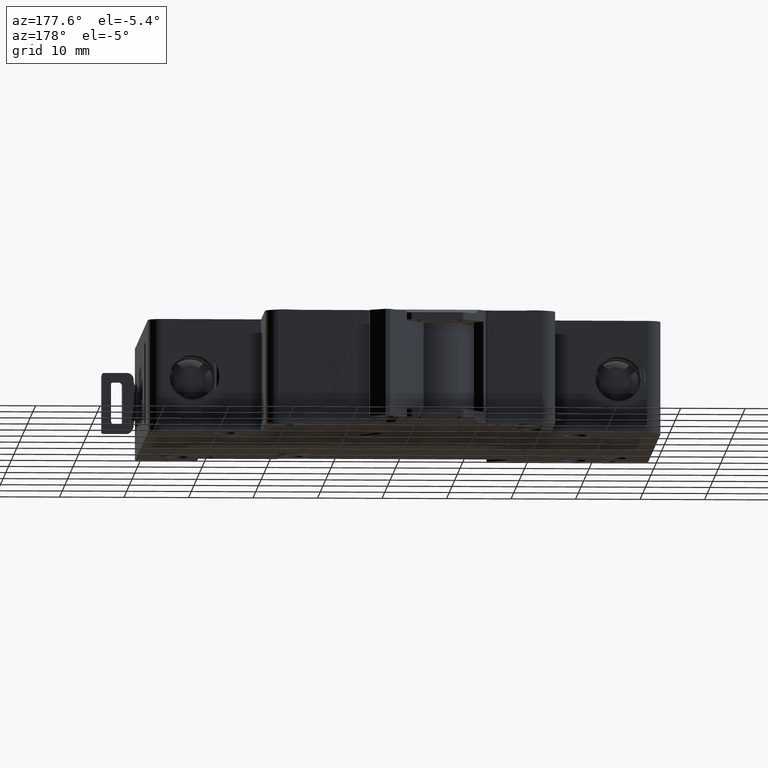
[diagram: clean part render]
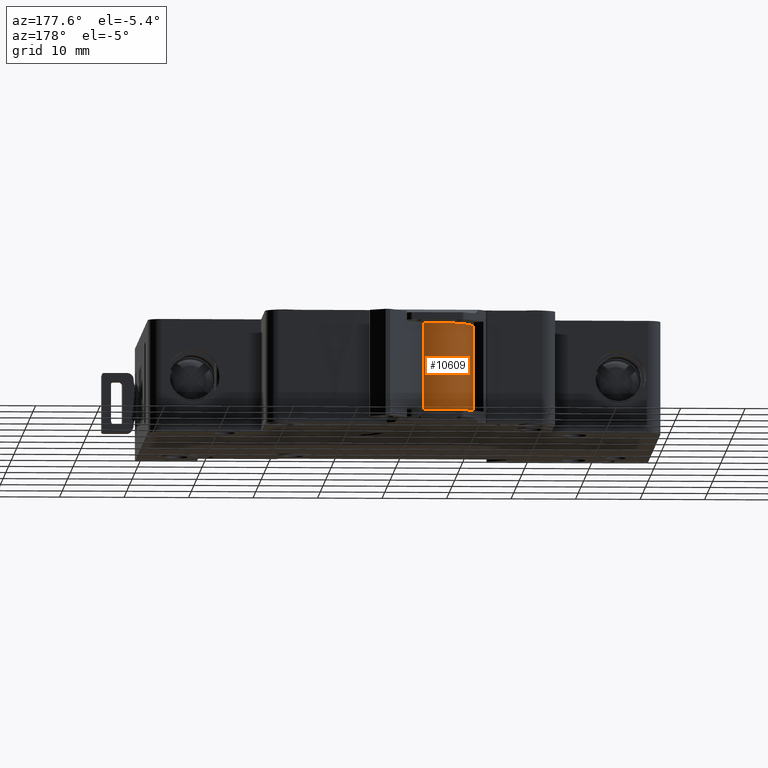
[diagram: same view with one face highlighted and labeled with its STEP entity id]
A machine part, auxiliary view. The second image highlights one B-rep face of the part: STEP entity #10609.
In plain terms, the highlighted cylindrical surface (partial cylindrical patch) has radius 6 mm, axis along (-0, -0, -1).
Its self-contained STEP definition (entity closure, byte-faithful):
#671 = CARTESIAN_POINT ( 'NONE',  ( 30.00000000000011700, 60.50000000000000000, 6.750000000000000000 ) ) ;
#733 = ORIENTED_EDGE ( 'NONE', *, *, #3440, .F. ) ;
#1026 = VECTOR ( 'NONE', #13751, 1000.000000000000000 ) ;
#1148 = DIRECTION ( 'NONE',  ( -0.0000000000000000000, -0.0000000000000000000, -1.000000000000000000 ) ) ;
#2406 = CARTESIAN_POINT ( 'NONE',  ( 36.00000000000000700, 60.50000000000000000, 6.750000000000000000 ) ) ;
#3135 = CARTESIAN_POINT ( 'NONE',  ( 30.00000000000011700, 60.50000000000000000, 6.750000000000000000 ) ) ;
#3440 = EDGE_CURVE ( 'NONE', #3765, #14033, #4576, .T. ) ;
#3566 = VERTEX_POINT ( 'NONE', #15350 ) ;
#3751 = DIRECTION ( 'NONE',  ( 1.000000000000000000, 0.0000000000000000000, 0.0000000000000000000 ) ) ;
#3765 = VERTEX_POINT ( 'NONE', #3135 ) ;
#4520 = CIRCLE ( 'NONE', #8408, 5.999999999999887200 ) ;
#4576 = LINE ( 'NONE', #671, #1026 ) ;
#5049 = ORIENTED_EDGE ( 'NONE', *, *, #14194, .F. ) ;
#6286 = ORIENTED_EDGE ( 'NONE', *, *, #13659, .T. ) ;
#6650 = CIRCLE ( 'NONE', #9076, 5.999999999999887200 ) ;
#7383 = CARTESIAN_POINT ( 'NONE',  ( 36.00000000000000700, 60.50000000000000000, -6.750000000000000000 ) ) ;
#8408 = AXIS2_PLACEMENT_3D ( 'NONE', #7383, #16279, #8676 ) ;
#8676 = DIRECTION ( 'NONE',  ( 1.000000000000000000, 0.0000000000000000000, 0.0000000000000000000 ) ) ;
#9076 = AXIS2_PLACEMENT_3D ( 'NONE', #2406, #11592, #3751 ) ;
#9156 = DIRECTION ( 'NONE',  ( -0.0000000000000000000, -0.0000000000000000000, -1.000000000000000000 ) ) ;
#10198 = CARTESIAN_POINT ( 'NONE',  ( 37.99362241761382800, 66.15910502252675900, -6.750000000000000000 ) ) ;
#10609 = ADVANCED_FACE ( 'NONE', ( #11264 ), #13828, .T. ) ;
#11264 = FACE_OUTER_BOUND ( 'NONE', #16271, .T. ) ;
#11592 = DIRECTION ( 'NONE',  ( -0.0000000000000000000, 0.0000000000000000000, 1.000000000000000000 ) ) ;
#11662 = VECTOR ( 'NONE', #9156, 1000.000000000000000 ) ;
#12575 = VERTEX_POINT ( 'NONE', #10198 ) ;
#12894 = CARTESIAN_POINT ( 'NONE',  ( 36.00000000000000700, 60.50000000000000000, 6.750000000000000000 ) ) ;
#13659 = EDGE_CURVE ( 'NONE', #3566, #12575, #15026, .T. ) ;
#13746 = CARTESIAN_POINT ( 'NONE',  ( 30.00000000000011700, 60.50000000000000000, -6.750000000000000000 ) ) ;
#13751 = DIRECTION ( 'NONE',  ( -0.0000000000000000000, -0.0000000000000000000, -1.000000000000000000 ) ) ;
#13828 = CYLINDRICAL_SURFACE ( 'NONE', #14101, 5.999999999999887200 ) ;
#14033 = VERTEX_POINT ( 'NONE', #13746 ) ;
#14101 = AXIS2_PLACEMENT_3D ( 'NONE', #12894, #1148, #16664 ) ;
#14192 = CARTESIAN_POINT ( 'NONE',  ( 37.99362241761382800, 66.15910502252675900, 6.750000000000000000 ) ) ;
#14194 = EDGE_CURVE ( 'NONE', #3566, #3765, #6650, .T. ) ;
#14598 = EDGE_CURVE ( 'NONE', #12575, #14033, #4520, .T. ) ;
#15026 = LINE ( 'NONE', #14192, #11662 ) ;
#15350 = CARTESIAN_POINT ( 'NONE',  ( 37.99362241761382800, 66.15910502252675900, 6.750000000000000000 ) ) ;
#15789 = ORIENTED_EDGE ( 'NONE', *, *, #14598, .T. ) ;
#16271 = EDGE_LOOP ( 'NONE', ( #733, #5049, #6286, #15789 ) ) ;
#16279 = DIRECTION ( 'NONE',  ( -0.0000000000000000000, 0.0000000000000000000, 1.000000000000000000 ) ) ;
#16664 = DIRECTION ( 'NONE',  ( -1.000000000000000000, 0.0000000000000000000, 0.0000000000000000000 ) ) ;